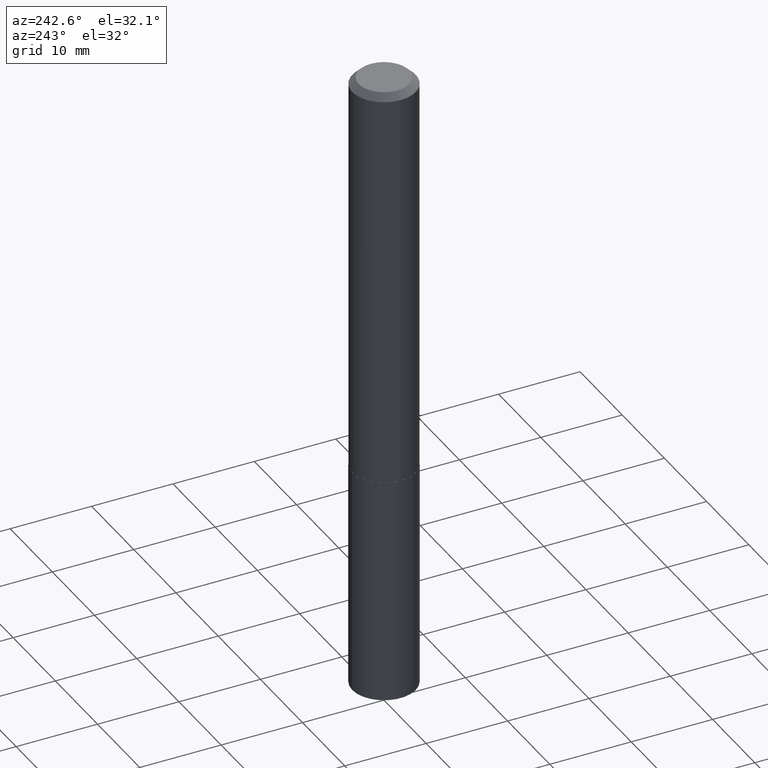
[diagram: clean part render]
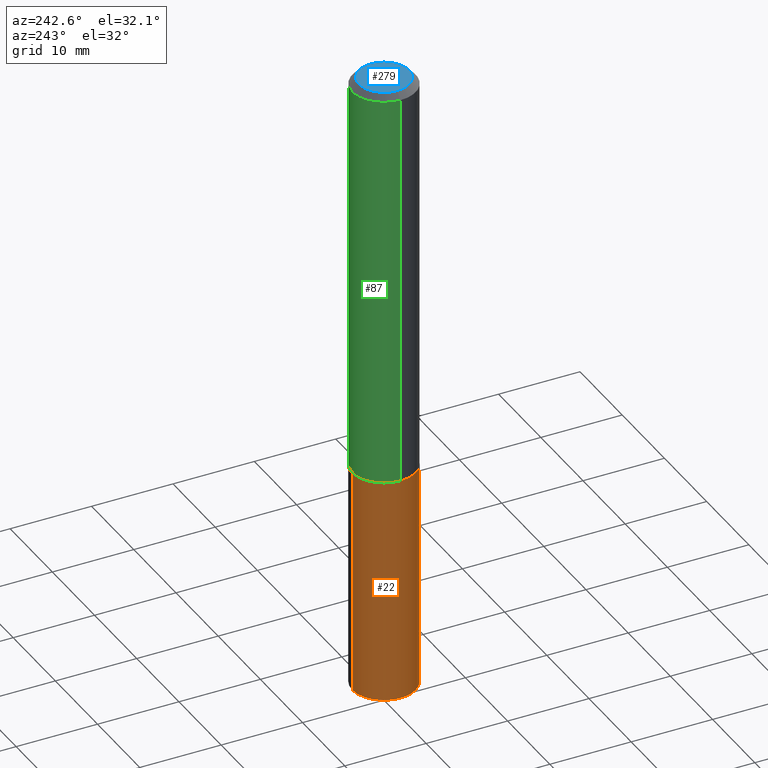
[diagram: same view with three faces highlighted in distinct colors, each labeled with its STEP entity id]
A machine part, auxiliary view with three faces highlighted in distinct colors.
Their STEP definitions:

[orange] entity #22 — the highlighted cylindrical surface (edge-blend (fillet) strip) has radius 3.9002 mm, axis along (-0, 0, 1).
#22 = ADVANCED_FACE ( 'NONE', ( #60 ), #323, .T. ) ;
#23 = DIRECTION ( 'NONE',  ( -6.982962677686266711E-15, -1.000000000000000000, 3.558252026915354491E-15 ) ) ;
#29 = VERTEX_POINT ( 'NONE', #272 ) ;
#33 = DIRECTION ( 'NONE',  ( -2.445604235534817824E-29, 3.491287396306242088E-15, 1.000000000000000000 ) ) ;
#57 = ORIENTED_EDGE ( 'NONE', *, *, #372, .F. ) ;
#58 = DIRECTION ( 'NONE',  ( -6.982962677686266711E-15, -1.000000000000000000, 3.558252026915354491E-15 ) ) ;
#60 = FACE_OUTER_BOUND ( 'NONE', #231, .T. ) ;
#82 = AXIS2_PLACEMENT_3D ( 'NONE', #126, #325, #58 ) ;
#101 = EDGE_CURVE ( 'NONE', #152, #258, #174, .T. ) ;
#102 = EDGE_CURVE ( 'NONE', #29, #351, #364, .T. ) ;
#120 = CARTESIAN_POINT ( 'NONE',  ( 1.091038370759681505E-15, 0.1535499999999931364, -1.960600000000000342 ) ) ;
#125 = DIRECTION ( 'NONE',  ( -6.982962677686266711E-15, -1.000000000000000000, 3.558252026915354491E-15 ) ) ;
#126 = CARTESIAN_POINT ( 'NONE',  ( 7.487650971556116702E-29, -1.068995466523567618E-14, -3.061785870967631773 ) ) ;
#139 = VECTOR ( 'NONE', #33, 39.37007874015748143 ) ;
#152 = VERTEX_POINT ( 'NONE', #338 ) ;
#153 = AXIS2_PLACEMENT_3D ( 'NONE', #181, #189, #125 ) ;
#158 = DIRECTION ( 'NONE',  ( -2.445604235534817824E-29, 3.491287396306242088E-15, 1.000000000000000000 ) ) ;
#166 = LINE ( 'NONE', #366, #139 ) ;
#174 = CIRCLE ( 'NONE', #153, 0.1535499999999999921 ) ;
#181 = CARTESIAN_POINT ( 'NONE',  ( 4.794586141406578598E-29, -6.845398312935870373E-15, -1.960599999999999898 ) ) ;
#189 = DIRECTION ( 'NONE',  ( -2.445604235534817824E-29, 3.491287396306242088E-15, 1.000000000000000000 ) ) ;
#197 = ORIENTED_EDGE ( 'NONE', *, *, #101, .F. ) ;
#220 = EDGE_CURVE ( 'NONE', #351, #258, #166, .T. ) ;
#231 = EDGE_LOOP ( 'NONE', ( #57, #320, #303, #197 ) ) ;
#258 = VERTEX_POINT ( 'NONE', #280 ) ;
#272 = CARTESIAN_POINT ( 'NONE',  ( 1.091038370759708721E-15, 0.1535499999999893339, -3.061785870967632217 ) ) ;
#277 = VECTOR ( 'NONE', #318, 39.37007874015748143 ) ;
#280 = CARTESIAN_POINT ( 'NONE',  ( -1.072233919158678223E-15, -0.1535500000000068477, -1.960599999999999232 ) ) ;
#303 = ORIENTED_EDGE ( 'NONE', *, *, #220, .T. ) ;
#318 = DIRECTION ( 'NONE',  ( -2.445604235534817824E-29, 3.491287396306242088E-15, 1.000000000000000000 ) ) ;
#320 = ORIENTED_EDGE ( 'NONE', *, *, #102, .T. ) ;
#323 = CYLINDRICAL_SURFACE ( 'NONE', #335, 0.1535499999999999921 ) ;
#325 = DIRECTION ( 'NONE',  ( -2.445604235534817824E-29, 3.491287396306242088E-15, 1.000000000000000000 ) ) ;
#335 = AXIS2_PLACEMENT_3D ( 'NONE', #353, #158, #23 ) ;
#338 = CARTESIAN_POINT ( 'NONE',  ( 1.091038370759708918E-15, 0.1535499999999931642, -1.960600000000000342 ) ) ;
#348 = CARTESIAN_POINT ( 'NONE',  ( -1.072233919158651402E-15, -0.1535500000000107057, -3.061785870967631329 ) ) ;
#351 = VERTEX_POINT ( 'NONE', #348 ) ;
#353 = CARTESIAN_POINT ( 'NONE',  ( 4.794586141406578598E-29, -6.845398312935870373E-15, -1.960599999999999898 ) ) ;
#364 = CIRCLE ( 'NONE', #82, 0.1535499999999999921 ) ;
#366 = CARTESIAN_POINT ( 'NONE',  ( -1.072233919158678223E-15, -0.1535500000000068477, -1.960599999999999232 ) ) ;
#372 = EDGE_CURVE ( 'NONE', #29, #152, #378, .T. ) ;
#378 = LINE ( 'NONE', #120, #277 ) ;

[blue] entity #279 — the highlighted planar face has unit normal (0, -0, -1).
#36 = DIRECTION ( 'NONE',  ( -1.000000000000000000, 6.982962677686265922E-15, -4.876176775795935793E-29 ) ) ;
#53 = ORIENTED_EDGE ( 'NONE', *, *, #289, .T. ) ;
#68 = DIRECTION ( 'NONE',  ( -2.445468806185136597E-29, 3.491481338843145583E-15, 1.000000000000000000 ) ) ;
#74 = CIRCLE ( 'NONE', #312, 0.1222999999999999782 ) ;
#84 = DIRECTION ( 'NONE',  ( 1.000000000000000000, -6.982962677686266711E-15, 4.876172253785905870E-29 ) ) ;
#118 = DIRECTION ( 'NONE',  ( -2.445468806185136597E-29, 3.491481338843145583E-15, 1.000000000000000000 ) ) ;
#123 = ORIENTED_EDGE ( 'NONE', *, *, #315, .T. ) ;
#192 = CARTESIAN_POINT ( 'NONE',  ( -8.834764860432444336E-48, 1.261370276539597297E-33, 3.612708057484663450E-19 ) ) ;
#198 = AXIS2_PLACEMENT_3D ( 'NONE', #223, #68, #287 ) ;
#201 = VERTEX_POINT ( 'NONE', #306 ) ;
#223 = CARTESIAN_POINT ( 'NONE',  ( -1.766952972086488867E-47, 2.522740553079194594E-33, 7.225416114969326901E-19 ) ) ;
#254 = FACE_OUTER_BOUND ( 'NONE', #376, .T. ) ;
#279 = ADVANCED_FACE ( 'NONE', ( #254 ), #337, .F. ) ;
#281 = CARTESIAN_POINT ( 'NONE',  ( 0.1222999999999999782, -1.000788582262062883E-15, 7.225416115034177777E-19 ) ) ;
#285 = VERTEX_POINT ( 'NONE', #281 ) ;
#287 = DIRECTION ( 'NONE',  ( 1.000000000000000000, -6.982962677686266711E-15, 4.876172253785905870E-29 ) ) ;
#289 = EDGE_CURVE ( 'NONE', #201, #285, #375, .T. ) ;
#306 = CARTESIAN_POINT ( 'NONE',  ( -0.1222999999999999782, 9.085707314004538757E-16, 7.225416114907696180E-19 ) ) ;
#308 = DIRECTION ( 'NONE',  ( 2.438088387897960049E-29, -3.491481338843145188E-15, -1.000000000000000000 ) ) ;
#312 = AXIS2_PLACEMENT_3D ( 'NONE', #317, #118, #84 ) ;
#315 = EDGE_CURVE ( 'NONE', #285, #201, #74, .T. ) ;
#317 = CARTESIAN_POINT ( 'NONE',  ( -1.766952972086488867E-47, 2.522740553079194594E-33, 7.225416114969326901E-19 ) ) ;
#337 = PLANE ( 'NONE',  #385 ) ;
#375 = CIRCLE ( 'NONE', #198, 0.1222999999999999782 ) ;
#376 = EDGE_LOOP ( 'NONE', ( #53, #123 ) ) ;
#385 = AXIS2_PLACEMENT_3D ( 'NONE', #192, #308, #36 ) ;

[green] entity #87 — the highlighted cylindrical surface (edge-blend (fillet) strip) has radius 3.9002 mm, axis along (-0, 0, 1).
#6 = VECTOR ( 'NONE', #382, 39.37007874015748143 ) ;
#9 = VERTEX_POINT ( 'NONE', #154 ) ;
#62 = DIRECTION ( 'NONE',  ( 1.000000000000000000, -6.982962677686270655E-15, 0.000000000000000000 ) ) ;
#69 = ORIENTED_EDGE ( 'NONE', *, *, #104, .F. ) ;
#77 = ORIENTED_EDGE ( 'NONE', *, *, #199, .F. ) ;
#81 = EDGE_CURVE ( 'NONE', #187, #345, #270, .T. ) ;
#85 = VECTOR ( 'NONE', #350, 39.37007874015748143 ) ;
#86 = CARTESIAN_POINT ( 'NONE',  ( -0.1535500000000002419, -5.752614201506813710E-15, -1.960099999999999953 ) ) ;
#87 = ADVANCED_FACE ( 'NONE', ( #357 ), #188, .T. ) ;
#100 = DIRECTION ( 'NONE',  ( 1.000000000000000000, -6.982962677686266711E-15, 4.876176775795935793E-29 ) ) ;
#104 = EDGE_CURVE ( 'NONE', #187, #129, #150, .T. ) ;
#107 = CARTESIAN_POINT ( 'NONE',  ( 7.642090019328603538E-31, -1.091087918388490390E-16, -0.03125000000000021511 ) ) ;
#129 = VERTEX_POINT ( 'NONE', #339 ) ;
#132 = CARTESIAN_POINT ( 'NONE',  ( 0.1535500000000002419, -7.915886491425178171E-15, -1.960099999999999953 ) ) ;
#144 = CARTESIAN_POINT ( 'NONE',  ( -0.1535500000000001308, 1.091038370759634765E-15, -7.553024831086413478E-30 ) ) ;
#150 = LINE ( 'NONE', #267, #6 ) ;
#154 = CARTESIAN_POINT ( 'NONE',  ( -0.1535499999999999921, -2.385342311293013826E-15, -0.03125000000000021511 ) ) ;
#163 = CIRCLE ( 'NONE', #245, 0.1535499999999999921 ) ;
#185 = AXIS2_PLACEMENT_3D ( 'NONE', #250, #361, #100 ) ;
#187 = VERTEX_POINT ( 'NONE', #132 ) ;
#188 = CYLINDRICAL_SURFACE ( 'NONE', #185, 0.1535500000000001308 ) ;
#199 = EDGE_CURVE ( 'NONE', #129, #9, #163, .T. ) ;
#212 = CARTESIAN_POINT ( 'NONE',  ( 4.793363407003486357E-29, -6.843652572266448870E-15, -1.960099999999999953 ) ) ;
#216 = ORIENTED_EDGE ( 'NONE', *, *, #81, .T. ) ;
#245 = AXIS2_PLACEMENT_3D ( 'NONE', #107, #251, #362 ) ;
#250 = CARTESIAN_POINT ( 'NONE',  ( 0.000000000000000000, 0.000000000000000000, 0.000000000000000000 ) ) ;
#251 = DIRECTION ( 'NONE',  ( -2.445468806185136597E-29, 3.491481338843145583E-15, 1.000000000000000000 ) ) ;
#267 = CARTESIAN_POINT ( 'NONE',  ( 0.1535500000000001308, -1.072233919158727132E-15, 7.487369439234666187E-30 ) ) ;
#270 = CIRCLE ( 'NONE', #347, 0.1535500000000002419 ) ;
#299 = EDGE_LOOP ( 'NONE', ( #216, #313, #77, #69 ) ) ;
#313 = ORIENTED_EDGE ( 'NONE', *, *, #332, .T. ) ;
#332 = EDGE_CURVE ( 'NONE', #345, #9, #346, .T. ) ;
#339 = CARTESIAN_POINT ( 'NONE',  ( 0.1535499999999999921, -1.181342710997575050E-15, -0.03125000000000021511 ) ) ;
#345 = VERTEX_POINT ( 'NONE', #86 ) ;
#346 = LINE ( 'NONE', #144, #85 ) ;
#347 = AXIS2_PLACEMENT_3D ( 'NONE', #212, #384, #62 ) ;
#350 = DIRECTION ( 'NONE',  ( -2.445468806185136877E-29, 3.491481338843145188E-15, 1.000000000000000000 ) ) ;
#357 = FACE_OUTER_BOUND ( 'NONE', #299, .T. ) ;
#361 = DIRECTION ( 'NONE',  ( -2.445468806185136597E-29, 3.491481338843145583E-15, 1.000000000000000000 ) ) ;
#362 = DIRECTION ( 'NONE',  ( 1.000000000000000000, -6.982962677686266711E-15, 0.000000000000000000 ) ) ;
#382 = DIRECTION ( 'NONE',  ( -2.445468806185136877E-29, 3.491481338843145188E-15, 1.000000000000000000 ) ) ;
#384 = DIRECTION ( 'NONE',  ( -2.445468806185136597E-29, 3.491481338843145583E-15, 1.000000000000000000 ) ) ;